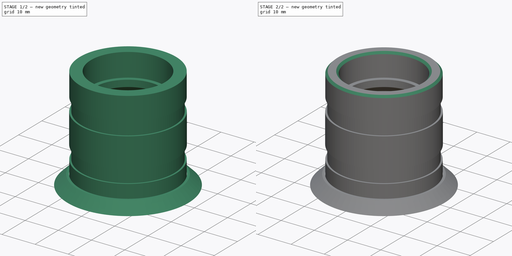
[diagram: build sequence overview — one tinted view per stage of 2, left to right]
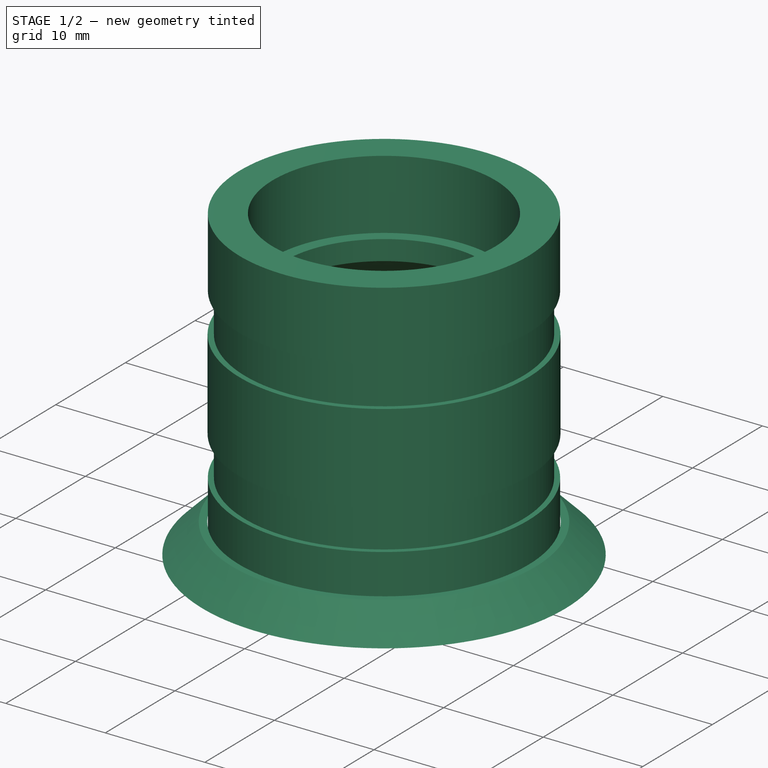
[diagram: stage 1 of 2 — iso view after this stage's code; geometry added in this stage tinted green]
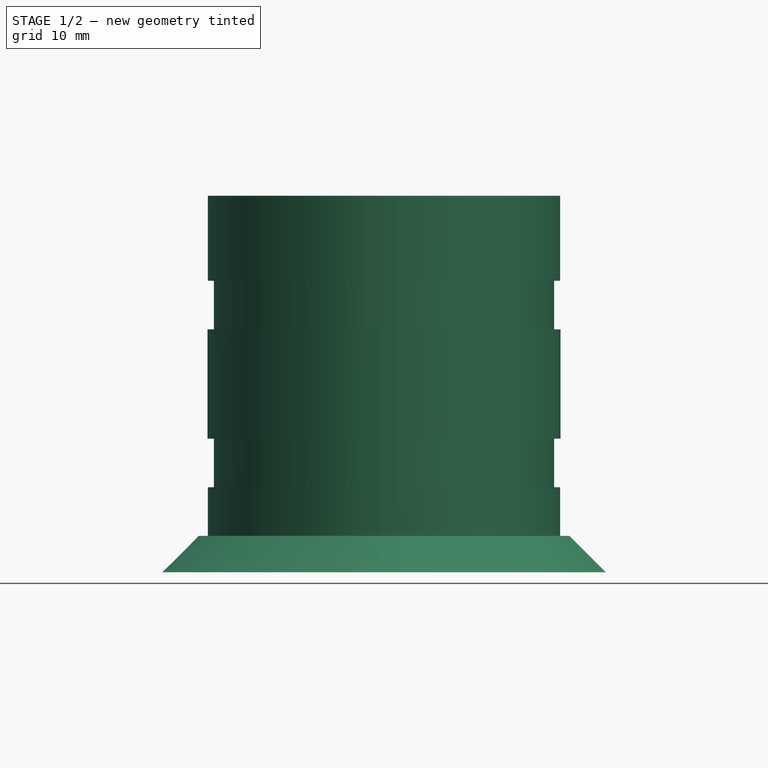
[diagram: stage 1 of 2 — front view after this stage's code; geometry added in this stage tinted green]
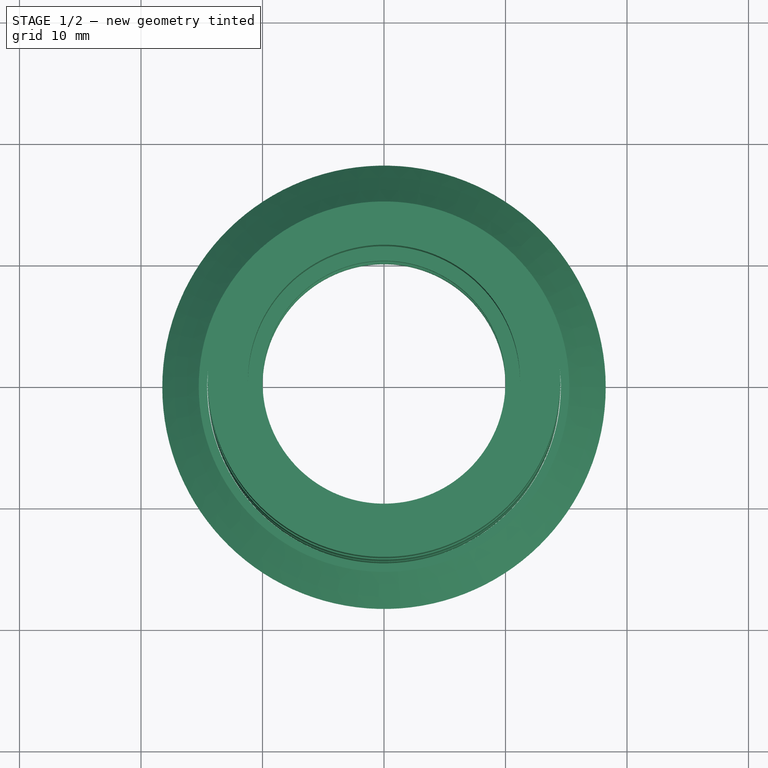
[diagram: stage 1 of 2 — top view after this stage's code; geometry added in this stage tinted green]
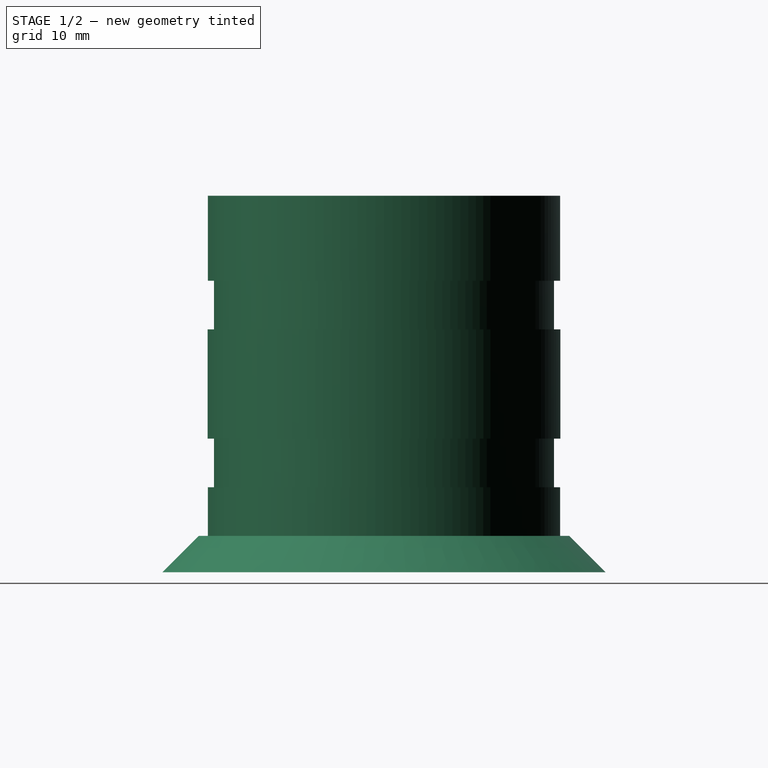
[diagram: stage 1 of 2 — right view after this stage's code; geometry added in this stage tinted green]
FCSTD DOCUMENT  (FreeCAD 0.19R)
Label: Radlagerbuchse3
License: All rights reserved
LicenseURL: http://en.wikipedia.org/wiki/All_rights_reserved
objects: Sketcher::SketchObject×2, PartDesign::Revolution×2, PartDesign::Body×2, Part::Chamfer×1
note: 9 computed .brp shape members not serialized (recipe doc carries the construction recipe); baked Part::Feature solids carry a one-line shape summary decoded from their .brp

FEATURE [Sketcher::SketchObject] Sketch
  MapMode = 5
  Placement = pos=(0,0,0) rot=(1,0,0;1.5708rad)
  Support = -> [XZ_Plane]
  sketch-geometry (23):
    g0: LineSegment StartX=11.2 StartY=15.5 StartZ=0 EndX=11.2 EndY=8.5 EndZ=0
    g1: LineSegment StartX=11.2 StartY=8.5 StartZ=0 EndX=10 EndY=8.5 EndZ=0
    g2: LineSegment StartX=10 StartY=8.5 StartZ=0 EndX=10 EndY=6.5 EndZ=0
    g3: LineSegment StartX=10 StartY=6.5 StartZ=0 EndX=12 EndY=4.5 EndZ=0
    g4: LineSegment StartX=12 StartY=4.5 StartZ=0 EndX=12 EndY=-4.5 EndZ=0
    g5: LineSegment StartX=12 StartY=-4.5 StartZ=0 EndX=10 EndY=-6.5 EndZ=0
    g6: LineSegment StartX=10 StartY=-6.5 StartZ=0 EndX=10 EndY=-8.5 EndZ=0
    g7: LineSegment StartX=10 StartY=-8.5 StartZ=0 EndX=11.2 EndY=-8.5 EndZ=0
    g8: LineSegment StartX=11.2 StartY=-8.5 StartZ=0 EndX=11.2 EndY=-15.5 EndZ=0
    g9: LineSegment StartX=11.2 StartY=-15.5 StartZ=0 EndX=14.5 EndY=-15.5 EndZ=0
    g10: LineSegment StartX=14.5 StartY=-15.5 StartZ=0 EndX=14.5 EndY=-8.5 EndZ=0
    g11: LineSegment StartX=14.5 StartY=-8.5 StartZ=0 EndX=14 EndY=-8.5 EndZ=0
    g12: LineSegment StartX=14 StartY=-8.5 StartZ=0 EndX=14 EndY=-4.5 EndZ=0
    g13: LineSegment StartX=14 StartY=-4.5 StartZ=0 EndX=14.525 EndY=-4.5 EndZ=0
    g14: LineSegment StartX=14.525 StartY=-4.5 StartZ=0 EndX=14.525 EndY=4.5 EndZ=0
    g15: LineSegment StartX=14.525 StartY=4.5 StartZ=0 EndX=14 EndY=4.5 EndZ=0
    g16: LineSegment StartX=14 StartY=4.5 StartZ=0 EndX=14 EndY=8.5 EndZ=0
    g17: LineSegment StartX=14 StartY=8.5 StartZ=0 EndX=14.5 EndY=8.5 EndZ=0
    g18: LineSegment StartX=14.5 StartY=8.5 StartZ=0 EndX=14.5 EndY=15.5 EndZ=0
    g19: LineSegment StartX=14.5 StartY=15.5 StartZ=0 EndX=11.2 EndY=15.5 EndZ=0
    g20: GeomPoint X=-11.2 Y=-15.5 Z=0
    g21: GeomPoint X=-14.5 Y=-15.5 Z=0
    g22: GeomPoint X=-10 Y=-8.5 Z=0
  constraints (59):
    c: Coincident(g0,g1)
    c: Coincident(g1,g2)
    c: Coincident(g2,g3)
    c: Coincident(g3,g4)
    c: Coincident(g4,g5)
    c: Coincident(g5,g6)
    c: Coincident(g6,g7)
    c: Coincident(g7,g8)
    c: Vertical(g8)
    c: Coincident(g8,g9)
    c: Horizontal(g9)
    c: Coincident(g9,g10)
    c: Coincident(g10,g11)
    c: Coincident(g11,g12)
    c: Vertical(g12)
    c: Coincident(g12,g13)
    c: Horizontal(g13)
    c: Coincident(g13,g14)
    c: Horizontal(g15)
    c: Coincident(g15,g16)
    c: Vertical(g16)
    c: Coincident(g16,g17)
    c: Coincident(g17,g18)
    c: Vertical(g18)
    c: Coincident(g18,g19)
    c: Coincident(g19,g0)
    c: Horizontal(g19)
    c: Vertical(g10)
    c: PointOnObject(g15,g12)
    c: Horizontal(g11)
    c: Symmetric(g13,g15,g-1)
    c: Horizontal(g17)
    c: Horizontal(g7)
    c: DistanceX(g11,g11) = 0.5
    c: Symmetric(g9,g18,g-1)
    c: Vertical(g6)
    c: DistanceY(g8,g0) = 31
    c: Symmetric(g4,g3,g-1)
    c: Vertical(g0)
    c: Horizontal(g1)
    c: Symmetric(g7,g0,g-1)
    c: Vertical(g2)
    c: Symmetric(g2,g5,g-1)
    c: DistanceY(g2,g2) = 2
    c: DistanceY(g8,g8) = 7
    c: DistanceX(g3,g18) = 2.5
    c: Angle(g3) = -0.785398
    c: DistanceY(g14,g14) = 9
    c: Symmetric(g6,g22,g-2)
    c: Symmetric(g20,g8,g-2)
    c: Symmetric(g21,g9,g-2)
    c: DistanceX(g21,g9) = 29  'AD'
    c: DistanceX(g20,g8) = 22.4  'ID'
    c: DistanceX(g22,g6) = 20
    c: DistanceX(g7,g7) = 1.2
    c: Coincident(g14,g15)
    c: Equal(g12,g16)
    c: DistanceY(g12,g12) = 4
    c: DistanceX(g17,g14) = 0.025
FEATURE [PartDesign::Revolution] Revolution
  Angle = 360
  Axis = (0,-2e-16,1)
  Base = (0,0,0)
  Placement = pos=(0,0,0) rot=(1,0,0;1.5708rad)
  Profile = -> Sketch
  ReferenceAxis = -> Sketch [V_Axis]
  Reversed = true
FEATURE [Sketcher::SketchObject] Sketch001
  MapMode = 5
  Placement = pos=(0,0,0) rot=(1,0,0;1.5708rad)
  Support = -> [XZ_Plane001]
  sketch-geometry (4):
    g0: LineSegment StartX=14.55 StartY=-12.5 StartZ=0 EndX=17.55 EndY=-15.5 EndZ=0
    g1: LineSegment StartX=17.55 StartY=-15.5 StartZ=0 EndX=18.25 EndY=-15.5 EndZ=0
    g2: LineSegment StartX=18.25 StartY=-15.5 StartZ=0 EndX=15.25 EndY=-12.5 EndZ=0
    g3: LineSegment StartX=15.25 StartY=-12.5 StartZ=0 EndX=14.55 EndY=-12.5 EndZ=0
  constraints (12):
    c: Coincident(g0,g1)
    c: Horizontal(g1)
    c: Coincident(g1,g2)
    c: Coincident(g2,g3)
    c: Coincident(g3,g0)
    c: Horizontal(g3)
    c: Parallel(g0,g2)
    c: Angle(g0) = -0.785398
    c: DistanceX(g1,g1) = 0.7
    c: DistanceY(g0) = -15.5
    c: DistanceX(g0,g0) = 3
    c: DistanceX(g0) = 14.55
FEATURE [PartDesign::Revolution] Revolution001
  Angle = 360
  Axis = (0,-2e-16,1)
  Base = (0,0,0)
  Placement = pos=(0,0,0) rot=(1,0,0;1.5708rad)
  Profile = -> Sketch001
  ReferenceAxis = -> Sketch001 [V_Axis]
  Reversed = true
FEATURE [PartDesign::Body] Body001  label="skirt"
  Group = -> [Sketch001,Revolution001]
  Origin = -> Origin001
  Tip = -> Revolution001
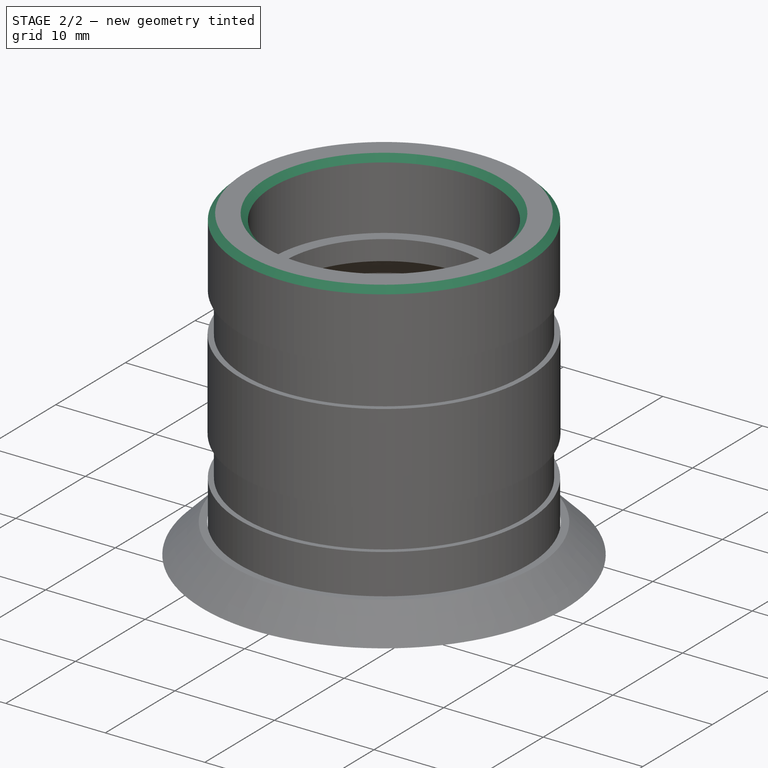
[diagram: stage 2 of 2 — iso view after this stage's code; geometry added in this stage tinted green]
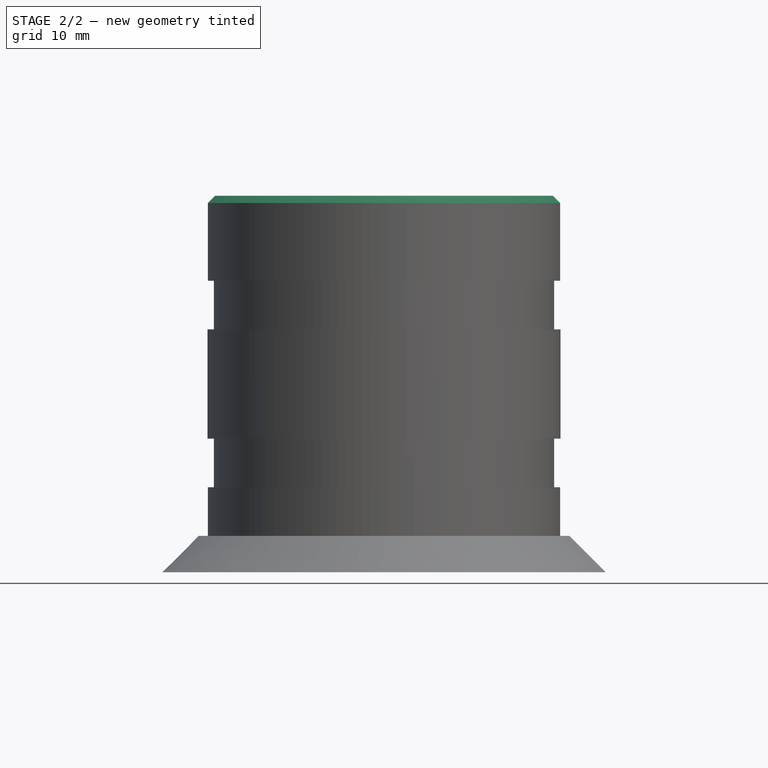
[diagram: stage 2 of 2 — front view after this stage's code; geometry added in this stage tinted green]
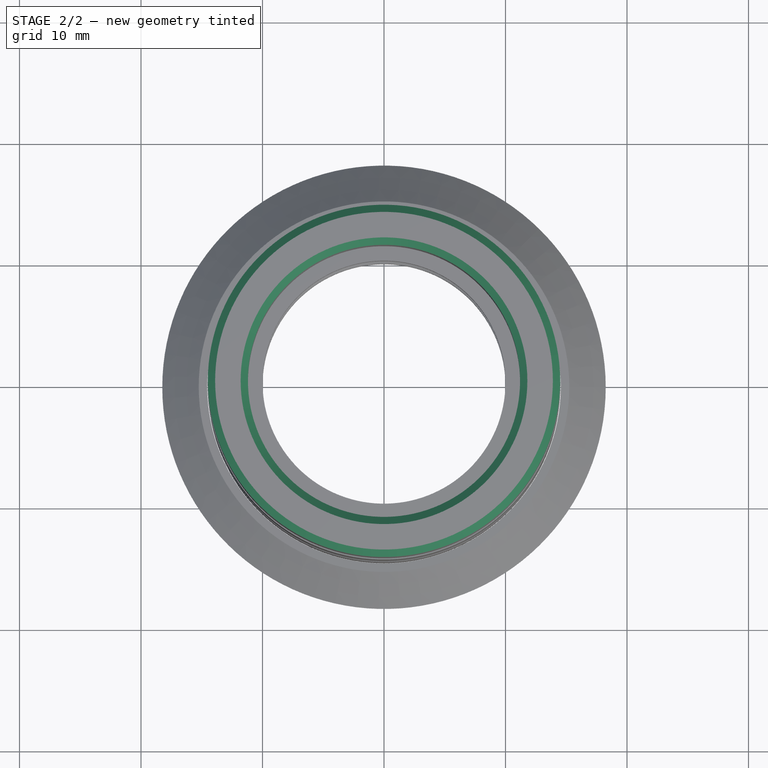
[diagram: stage 2 of 2 — top view after this stage's code; geometry added in this stage tinted green]
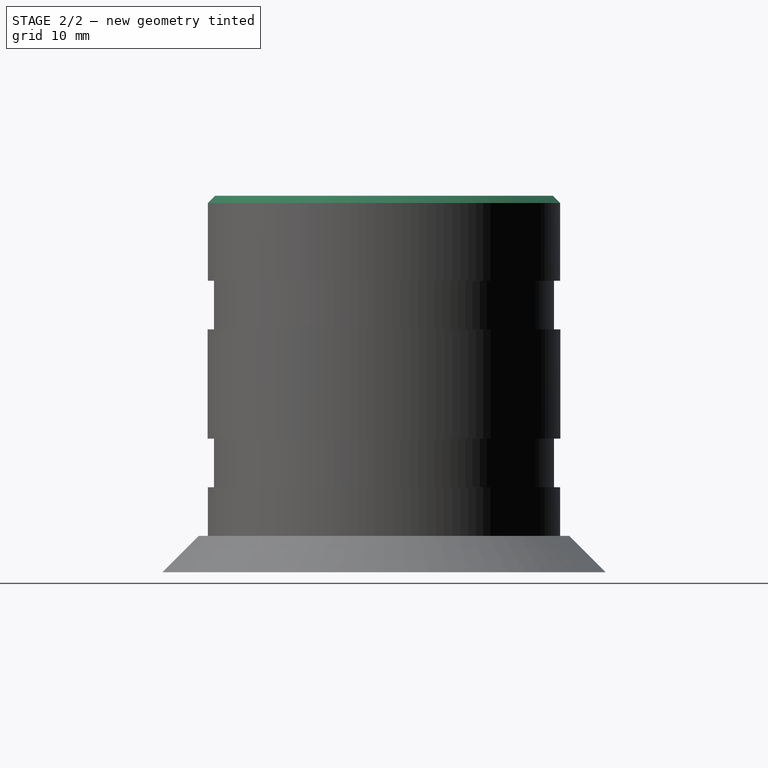
[diagram: stage 2 of 2 — right view after this stage's code; geometry added in this stage tinted green]
FEATURE [PartDesign::Body] Body
  Group = -> [Sketch,Revolution]
  Origin = -> Origin
  Tip = -> Revolution
FEATURE [Part::Chamfer] Chamfer  label="buchse"
  Base = -> Revolution
  Edges = 4 edges r=0.6: [Edge1,Edge16,Edge18,Edge31]
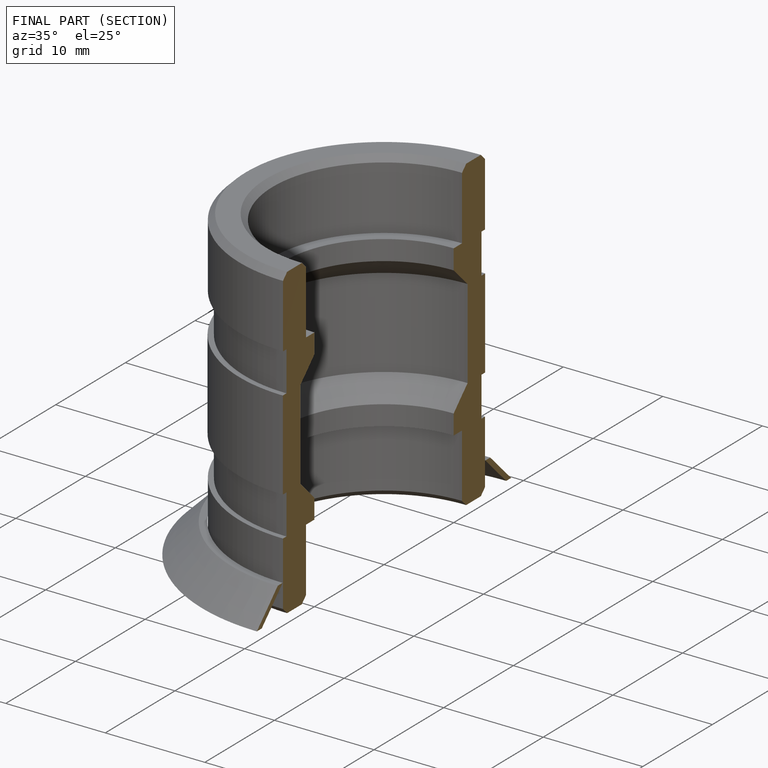
[diagram: finished part — half-section view (interior)]
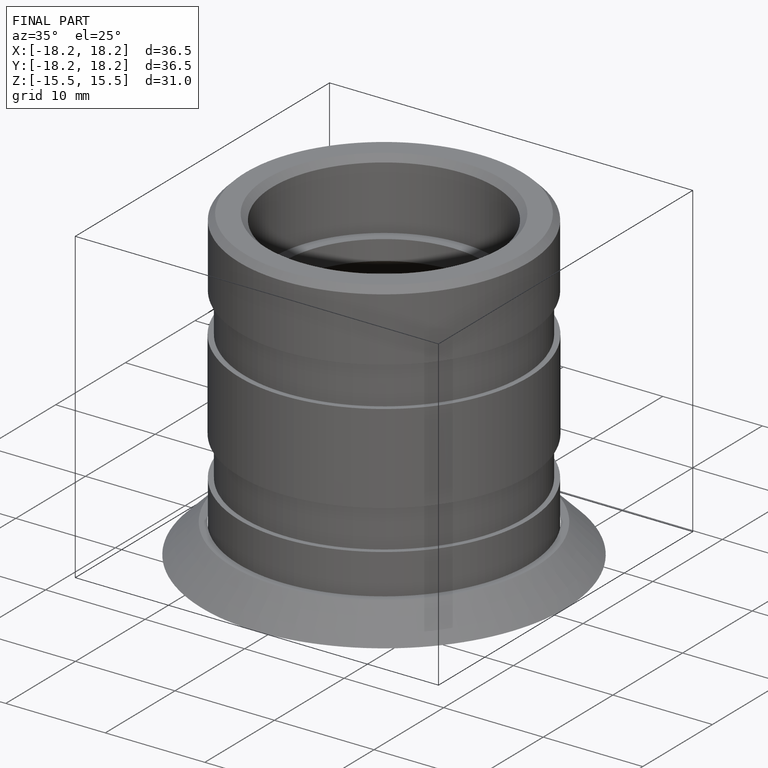
[diagram: finished part — iso view with bounding-box wireframe]
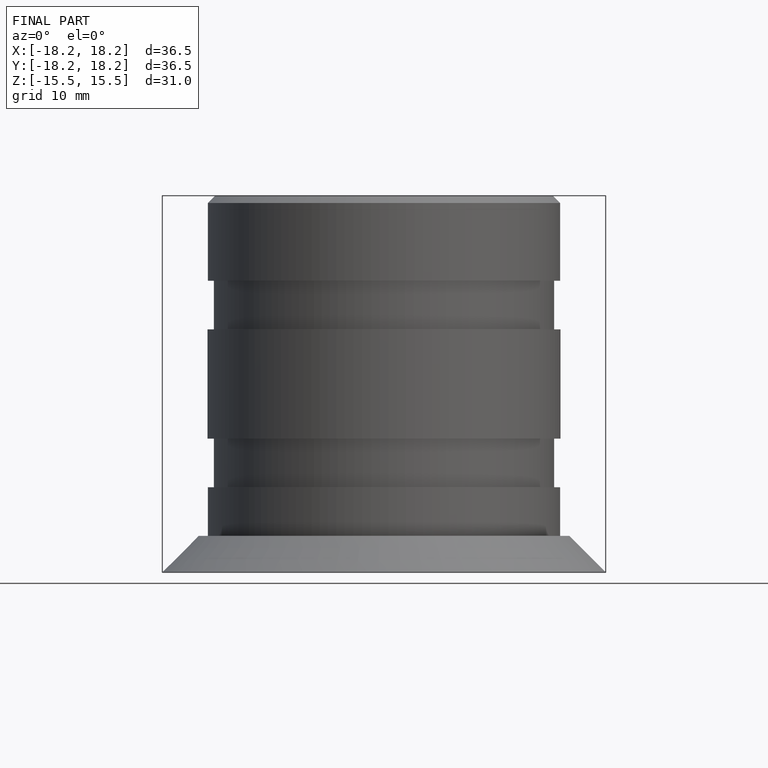
[diagram: finished part — front view with bounding-box wireframe]
